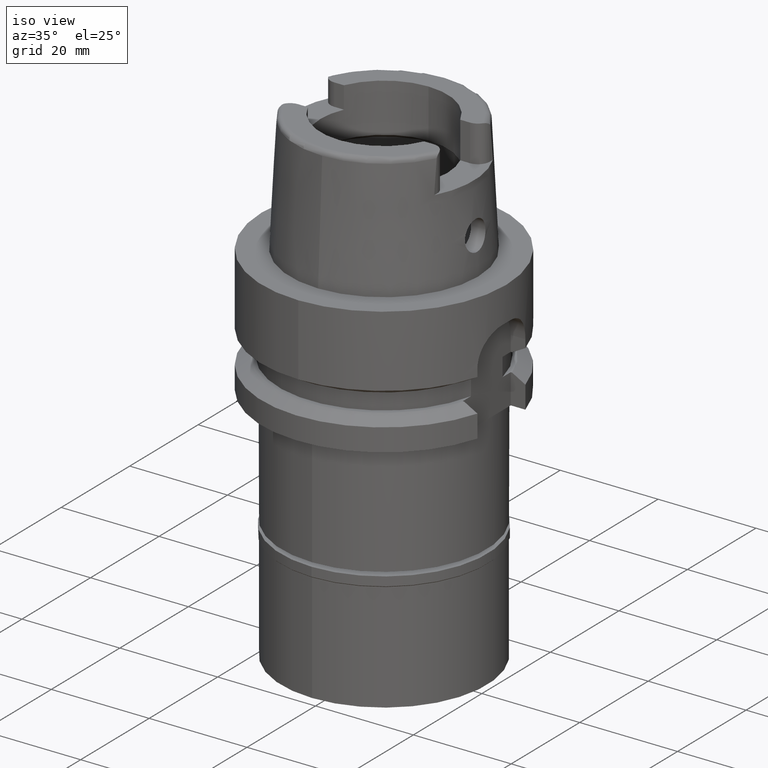
[diagram: clean part render]
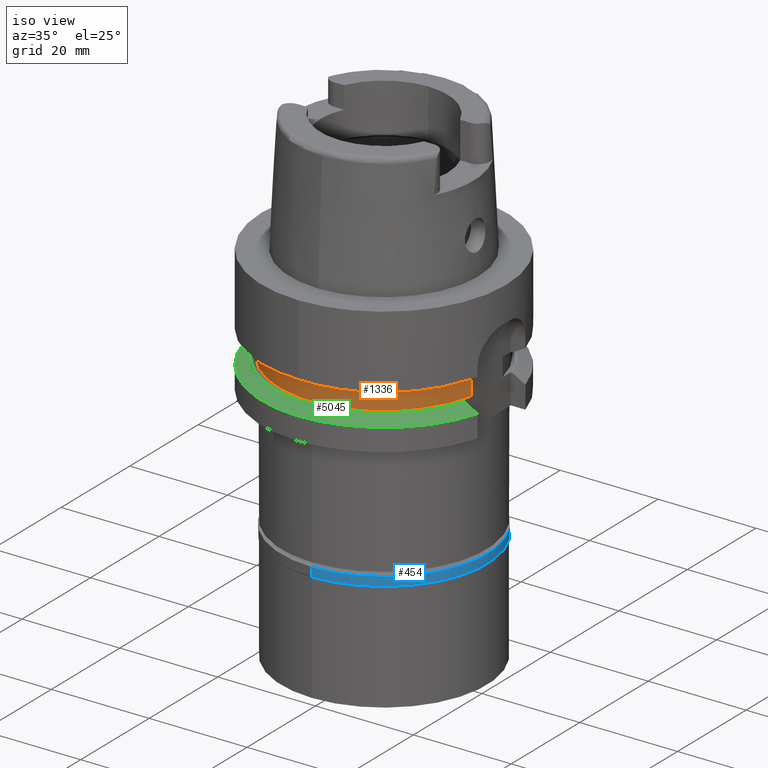
[diagram: same view with three faces highlighted in distinct colors, each labeled with its STEP entity id]
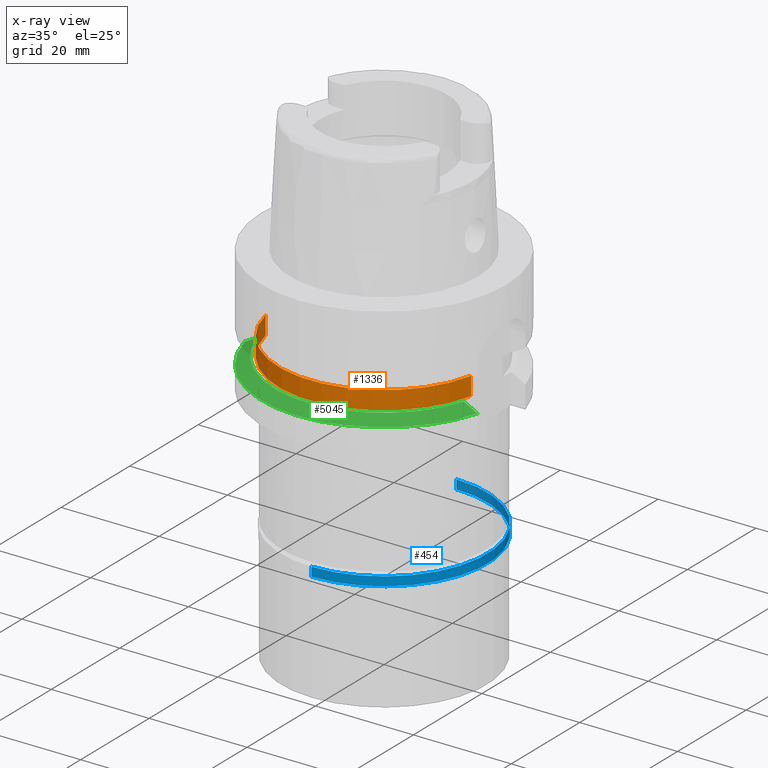
[diagram: x-ray of the same camera — body ghosted, the three highlighted faces saturated]
A machine part, iso view with three faces highlighted in distinct colors.
The next image is the same camera in x-ray (body ghosted, the three faces saturated) — at least one of them is partly hidden behind the body in this view.
Their STEP definitions:

[orange] entity #1336 — the highlighted cylindrical surface (partial cylindrical patch) has radius 21.5 mm, axis along (0, 0, 1).
#21 = AXIS2_PLACEMENT_3D ( 'NONE', #2026, #2885, #3314 ) ;
#67 = LINE ( 'NONE', #1745, #2200 ) ;
#205 = CARTESIAN_POINT ( 'NONE',  ( 0.0000000000000000000, 0.0000000000000000000, -72.12500000000000000 ) ) ;
#214 = CIRCLE ( 'NONE', #2149, 21.50000000000000000 ) ;
#349 = AXIS2_PLACEMENT_3D ( 'NONE', #205, #1526, #2295 ) ;
#677 = EDGE_CURVE ( 'NONE', #2427, #2537, #214, .T. ) ;
#1089 = CYLINDRICAL_SURFACE ( 'NONE', #349, 21.50000000000000000 ) ;
#1161 = VECTOR ( 'NONE', #5324, 1000.000000000000000 ) ;
#1336 = ADVANCED_FACE ( 'NONE', ( #1881 ), #1089, .T. ) ;
#1361 = DIRECTION ( 'NONE',  ( 0.0000000000000000000, 0.0000000000000000000, 1.000000000000000000 ) ) ;
#1496 = EDGE_CURVE ( 'NONE', #4570, #2537, #67, .T. ) ;
#1526 = DIRECTION ( 'NONE',  ( 0.0000000000000000000, 0.0000000000000000000, 1.000000000000000000 ) ) ;
#1745 = CARTESIAN_POINT ( 'NONE',  ( 21.00000000000000000, -4.609772228645999448, -16.12500000000000000 ) ) ;
#1846 = DIRECTION ( 'NONE',  ( 0.0000000000000000000, 0.0000000000000000000, -1.000000000000000000 ) ) ;
#1881 = FACE_OUTER_BOUND ( 'NONE', #2138, .T. ) ;
#2013 = CARTESIAN_POINT ( 'NONE',  ( 21.00000000000000000, -4.609772228645999448, -16.12500000000000000 ) ) ;
#2026 = CARTESIAN_POINT ( 'NONE',  ( 0.0000000000000000000, 0.0000000000000000000, -16.12500000000000000 ) ) ;
#2138 = EDGE_LOOP ( 'NONE', ( #3131, #4386, #3833, #4073 ) ) ;
#2149 = AXIS2_PLACEMENT_3D ( 'NONE', #3911, #1361, #3494 ) ;
#2200 = VECTOR ( 'NONE', #1846, 1000.000000000000000 ) ;
#2295 = DIRECTION ( 'NONE',  ( 0.0000000000000000000, 1.000000000000000000, 0.0000000000000000000 ) ) ;
#2427 = VERTEX_POINT ( 'NONE', #4074 ) ;
#2537 = VERTEX_POINT ( 'NONE', #4591 ) ;
#2885 = DIRECTION ( 'NONE',  ( 0.0000000000000000000, 0.0000000000000000000, -1.000000000000000000 ) ) ;
#3014 = CIRCLE ( 'NONE', #21, 21.50000000000000000 ) ;
#3131 = ORIENTED_EDGE ( 'NONE', *, *, #677, .T. ) ;
#3187 = CARTESIAN_POINT ( 'NONE',  ( -21.00000000000000000, -4.609772228645999448, -19.87500000000000000 ) ) ;
#3314 = DIRECTION ( 'NONE',  ( 0.0000000000000000000, -1.000000000000000000, 0.0000000000000000000 ) ) ;
#3494 = DIRECTION ( 'NONE',  ( -0.9767441860465149173, -0.2144080106347034664, 0.0000000000000000000 ) ) ;
#3544 = EDGE_CURVE ( 'NONE', #4570, #4440, #3014, .T. ) ;
#3833 = ORIENTED_EDGE ( 'NONE', *, *, #3544, .T. ) ;
#3911 = CARTESIAN_POINT ( 'NONE',  ( 0.0000000000000000000, 0.0000000000000000000, -19.87500000000000000 ) ) ;
#4073 = ORIENTED_EDGE ( 'NONE', *, *, #4328, .F. ) ;
#4074 = CARTESIAN_POINT ( 'NONE',  ( -21.00000000000000000, -4.609772228645999448, -19.87500000000000000 ) ) ;
#4328 = EDGE_CURVE ( 'NONE', #2427, #4440, #4394, .T. ) ;
#4386 = ORIENTED_EDGE ( 'NONE', *, *, #1496, .F. ) ;
#4394 = LINE ( 'NONE', #3187, #1161 ) ;
#4440 = VERTEX_POINT ( 'NONE', #5207 ) ;
#4570 = VERTEX_POINT ( 'NONE', #2013 ) ;
#4591 = CARTESIAN_POINT ( 'NONE',  ( 21.00000000000000000, -4.609772228645999448, -19.87500000000000000 ) ) ;
#5207 = CARTESIAN_POINT ( 'NONE',  ( -21.00000000000000000, -4.609772228645999448, -16.12500000000000000 ) ) ;
#5324 = DIRECTION ( 'NONE',  ( 0.0000000000000000000, 0.0000000000000000000, 1.000000000000000000 ) ) ;

[blue] entity #454 — the highlighted cylindrical surface (partial cylindrical patch) has radius 21.15 mm, axis along (0, 0, -1).
#122 = AXIS2_PLACEMENT_3D ( 'NONE', #3718, #2440, #760 ) ;
#244 = EDGE_CURVE ( 'NONE', #3789, #2704, #4485, .T. ) ;
#383 = ORIENTED_EDGE ( 'NONE', *, *, #4694, .F. ) ;
#402 = ORIENTED_EDGE ( 'NONE', *, *, #4435, .T. ) ;
#454 = ADVANCED_FACE ( 'NONE', ( #1169 ), #2014, .T. ) ;
#525 = LINE ( 'NONE', #5178, #1952 ) ;
#625 = AXIS2_PLACEMENT_3D ( 'NONE', #4504, #2247, #3950 ) ;
#760 = DIRECTION ( 'NONE',  ( 0.0000000000000000000, -1.000000000000000000, 0.0000000000000000000 ) ) ;
#840 = CARTESIAN_POINT ( 'NONE',  ( 0.0000000000000000000, 0.0000000000000000000, 0.0000000000000000000 ) ) ;
#1043 = CARTESIAN_POINT ( 'NONE',  ( 0.0000000000000000000, -21.14999999999999858, 0.0000000000000000000 ) ) ;
#1169 = FACE_OUTER_BOUND ( 'NONE', #2351, .T. ) ;
#1326 = ORIENTED_EDGE ( 'NONE', *, *, #244, .T. ) ;
#1476 = DIRECTION ( 'NONE',  ( 0.0000000000000000000, 0.0000000000000000000, -1.000000000000000000 ) ) ;
#1540 = CARTESIAN_POINT ( 'NONE',  ( 0.0000000000000000000, 21.14999999999999858, 0.0000000000000000000 ) ) ;
#1952 = VECTOR ( 'NONE', #4221, 1000.000000000000000 ) ;
#2014 = CYLINDRICAL_SURFACE ( 'NONE', #122, 21.14999999999999858 ) ;
#2247 = DIRECTION ( 'NONE',  ( 0.0000000000000000000, 0.0000000000000000000, 1.000000000000000000 ) ) ;
#2351 = EDGE_LOOP ( 'NONE', ( #3785, #1326, #402, #383 ) ) ;
#2440 = DIRECTION ( 'NONE',  ( 0.0000000000000000000, 0.0000000000000000000, -1.000000000000000000 ) ) ;
#2566 = DIRECTION ( 'NONE',  ( 0.0000000000000000000, 1.000000000000000000, 0.0000000000000000000 ) ) ;
#2704 = VERTEX_POINT ( 'NONE', #4289 ) ;
#2794 = VERTEX_POINT ( 'NONE', #4893 ) ;
#2915 = CIRCLE ( 'NONE', #4615, 21.14999999999999858 ) ;
#3381 = VERTEX_POINT ( 'NONE', #1540 ) ;
#3718 = CARTESIAN_POINT ( 'NONE',  ( 0.0000000000000000000, 0.0000000000000000000, 0.0000000000000000000 ) ) ;
#3785 = ORIENTED_EDGE ( 'NONE', *, *, #4658, .T. ) ;
#3789 = VERTEX_POINT ( 'NONE', #3926 ) ;
#3878 = DIRECTION ( 'NONE',  ( 0.0000000000000000000, 0.0000000000000000000, -1.000000000000000000 ) ) ;
#3926 = CARTESIAN_POINT ( 'NONE',  ( 0.0000000000000000000, -21.14999999999999858, 0.0000000000000000000 ) ) ;
#3950 = DIRECTION ( 'NONE',  ( 0.0000000000000000000, -1.000000000000000000, 0.0000000000000000000 ) ) ;
#4221 = DIRECTION ( 'NONE',  ( 0.0000000000000000000, 0.0000000000000000000, -1.000000000000000000 ) ) ;
#4289 = CARTESIAN_POINT ( 'NONE',  ( 0.0000000000000000000, -21.14999999999999858, -1.850000000000000089 ) ) ;
#4435 = EDGE_CURVE ( 'NONE', #2704, #2794, #4611, .T. ) ;
#4485 = LINE ( 'NONE', #1043, #4556 ) ;
#4504 = CARTESIAN_POINT ( 'NONE',  ( 0.0000000000000000000, 0.0000000000000000000, -1.850000000000000089 ) ) ;
#4556 = VECTOR ( 'NONE', #1476, 1000.000000000000000 ) ;
#4611 = CIRCLE ( 'NONE', #625, 21.14999999999999858 ) ;
#4615 = AXIS2_PLACEMENT_3D ( 'NONE', #840, #3878, #2566 ) ;
#4658 = EDGE_CURVE ( 'NONE', #3381, #3789, #2915, .T. ) ;
#4694 = EDGE_CURVE ( 'NONE', #3381, #2794, #525, .T. ) ;
#4893 = CARTESIAN_POINT ( 'NONE',  ( 0.0000000000000000000, 21.14999999999999858, -1.850000000000000089 ) ) ;
#5178 = CARTESIAN_POINT ( 'NONE',  ( 0.0000000000000000000, 21.14999999999999858, 0.0000000000000000000 ) ) ;

[green] entity #5045 — the highlighted conical surface has half-angle 60 deg.
#81 = B_SPLINE_CURVE_WITH_KNOTS ( 'NONE', 3,
 ( #2725, #215, #1892, #711 ),
 .UNSPECIFIED., .F., .F.,
 ( 4, 4 ),
 ( 0.0000000000000000000, 1.000000000000000000 ),
 .UNSPECIFIED. ) ;
#215 = CARTESIAN_POINT ( 'NONE',  ( -22.42760335207917066, -6.000000418702027716, -20.34704685879417241 ) ) ;
#230 = EDGE_CURVE ( 'NONE', #1434, #1532, #3832, .T. ) ;
#242 = CARTESIAN_POINT ( 'NONE',  ( 0.0000000000000000000, 0.0000000000000000000, -21.37749907476000288 ) ) ;
#405 = DIRECTION ( 'NONE',  ( 0.0000000000000000000, -1.000000000000000000, 0.0000000000000000000 ) ) ;
#623 = VERTEX_POINT ( 'NONE', #5097 ) ;
#700 = DIRECTION ( 'NONE',  ( 0.0000000000000000000, 0.0000000000000000000, -1.000000000000000000 ) ) ;
#711 = CARTESIAN_POINT ( 'NONE',  ( -24.26932203506000008, -6.000000663193000072, -21.37750544450000234 ) ) ;
#712 = DIRECTION ( 'NONE',  ( 0.9599999999999999645, -0.2800000000000000266, 0.0000000000000000000 ) ) ;
#811 = CIRCLE ( 'NONE', #2036, 22.39759526418999869 ) ;
#1068 = VERTEX_POINT ( 'NONE', #5470 ) ;
#1137 = DIRECTION ( 'NONE',  ( 0.0000000000000000000, -1.000000000000000000, 0.0000000000000000000 ) ) ;
#1188 = EDGE_LOOP ( 'NONE', ( #2747, #4648, #1630, #3575 ) ) ;
#1434 = VERTEX_POINT ( 'NONE', #4417 ) ;
#1442 = AXIS2_PLACEMENT_3D ( 'NONE', #242, #3589, #712 ) ;
#1532 = VERTEX_POINT ( 'NONE', #5129 ) ;
#1600 = CONICAL_SURFACE ( 'NONE', #3006, 23.69879763209999979, 1.047197551196400456 ) ;
#1630 = ORIENTED_EDGE ( 'NONE', *, *, #1688, .T. ) ;
#1688 = EDGE_CURVE ( 'NONE', #1434, #623, #3513, .T. ) ;
#1892 = CARTESIAN_POINT ( 'NONE',  ( -23.32437824497495882, -6.000001325896923809, -20.84788086563123244 ) ) ;
#1991 = CARTESIAN_POINT ( 'NONE',  ( 23.04351223397376813, -6.999999561876524723, -20.84735967209491747 ) ) ;
#2036 = AXIS2_PLACEMENT_3D ( 'NONE', #5348, #700, #1137 ) ;
#2725 = CARTESIAN_POINT ( 'NONE',  ( -21.57897428305000176, -6.000000209097000159, -19.87500000000000000 ) ) ;
#2747 = ORIENTED_EDGE ( 'NONE', *, *, #5403, .T. ) ;
#3006 = AXIS2_PLACEMENT_3D ( 'NONE', #3945, #5263, #405 ) ;
#3324 = CARTESIAN_POINT ( 'NONE',  ( 24.00000000000000000, -7.000000000000000000, -21.37749907476000288 ) ) ;
#3513 = B_SPLINE_CURVE_WITH_KNOTS ( 'NONE', 3,
 ( #3324, #1991, #4941, #4191 ),
 .UNSPECIFIED., .F., .F.,
 ( 4, 4 ),
 ( 0.0000000000000000000, 1.000000000000000000 ),
 .UNSPECIFIED. ) ;
#3575 = ORIENTED_EDGE ( 'NONE', *, *, #5055, .T. ) ;
#3589 = DIRECTION ( 'NONE',  ( 0.0000000000000000000, 0.0000000000000000000, -1.000000000000000000 ) ) ;
#3832 = CIRCLE ( 'NONE', #1442, 25.00000000000000000 ) ;
#3945 = CARTESIAN_POINT ( 'NONE',  ( 0.0000000000000000000, 0.0000000000000000000, -20.62624953738000144 ) ) ;
#4191 = CARTESIAN_POINT ( 'NONE',  ( 21.27564231150000040, -6.999998839991000033, -19.87500000000000000 ) ) ;
#4417 = CARTESIAN_POINT ( 'NONE',  ( 24.00000000000000000, -7.000000000000000000, -21.37749907476000288 ) ) ;
#4648 = ORIENTED_EDGE ( 'NONE', *, *, #230, .F. ) ;
#4941 = CARTESIAN_POINT ( 'NONE',  ( 22.13540832139378622, -6.999997676196006324, -20.34652894309256865 ) ) ;
#5045 = ADVANCED_FACE ( 'NONE', ( #5316 ), #1600, .T. ) ;
#5055 = EDGE_CURVE ( 'NONE', #623, #1068, #811, .T. ) ;
#5097 = CARTESIAN_POINT ( 'NONE',  ( 21.27564231150000040, -6.999998839991000033, -19.87500000000000000 ) ) ;
#5129 = CARTESIAN_POINT ( 'NONE',  ( -24.26932203506000008, -6.000000663193000072, -21.37750544450000234 ) ) ;
#5263 = DIRECTION ( 'NONE',  ( 0.0000000000000000000, 0.0000000000000000000, -1.000000000000000000 ) ) ;
#5316 = FACE_OUTER_BOUND ( 'NONE', #1188, .T. ) ;
#5348 = CARTESIAN_POINT ( 'NONE',  ( 0.0000000000000000000, 0.0000000000000000000, -19.87500000000000000 ) ) ;
#5403 = EDGE_CURVE ( 'NONE', #1068, #1532, #81, .T. ) ;
#5470 = CARTESIAN_POINT ( 'NONE',  ( -21.57897428305000176, -6.000000209097000159, -19.87500000000000000 ) ) ;